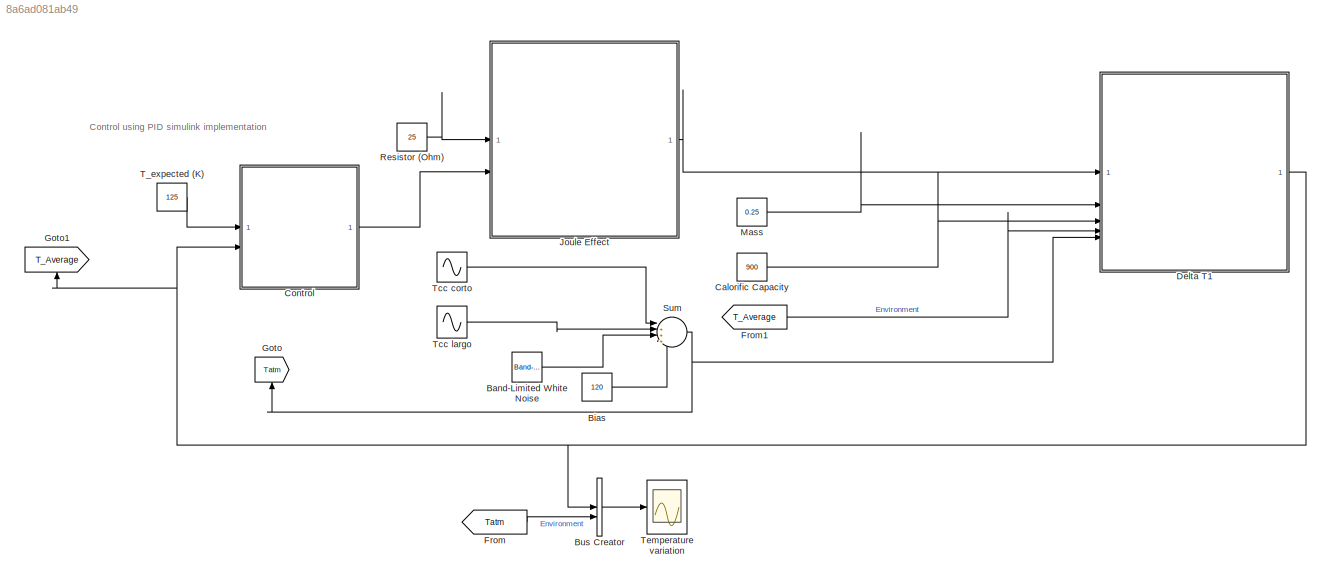
MODEL slx_8a6ad081ab49
KIND model
CONFIG AbsTol = auto
CONFIG EnableMultiTasking = off
CONFIG FixedStep = auto
CONFIG MaxStep = auto
CONFIG MinStep = auto
CONFIG RelTol = 1e-3
CONFIG SampleTimeConstraint = Unconstrained
CONFIG SolverName = VariableStepAuto
CONFIG StartTime = 0.0
CONFIG StopTime = 60*60*24
BLOCK [Reference] Band-Limited White Noise  REF=simulink/Sources/Band-Limited
White Noise
  SourceBlock = simulink/Sources/Band-Limited\nWhite Noise
  SourceType = Band-Limited White Noise.
BLOCK [Constant] Bias
  Value = 120
BLOCK [BusCreator] Bus Creator
  DisplayOption = bar
  InheritFromInputs = on
  Inputs = 2
BLOCK [Constant] Calorific Capacity
  Value = 900
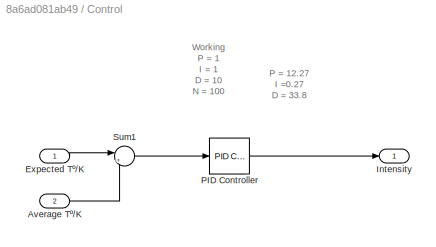
BLOCK [SubSystem] Control
BLOCK [Inport] Control/Average Tº//K
  Port = 2
BLOCK [Inport] Control/Expected Tº//K
BLOCK [Outport] Control/Intensity
BLOCK [Reference] Control/PID Controller  REF=slpidlib/PID Controller
  LibrarySourceBlock = simulink/Continuous/PID Controller
  SourceBlock = slpidlib/PID Controller
  SourceType = PID 1dof
BLOCK [Sum] Control/Sum1
  Inputs = |+-
  NameLocation = top
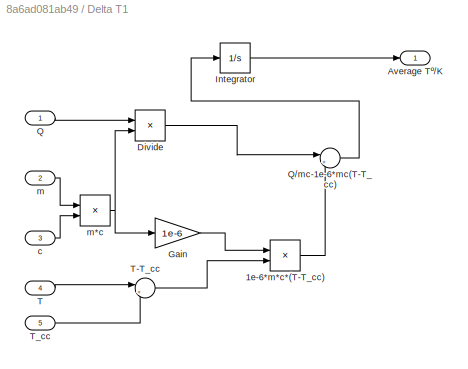
BLOCK [SubSystem] Delta T1
BLOCK [Product] Delta T1/1e-6*m*c*(T-T_cc)
BLOCK [Outport] Delta T1/Average Tº//K
BLOCK [Product] Delta T1/Divide
  Inputs = */
BLOCK [Gain] Delta T1/Gain
  Gain = 1e-6
BLOCK [Integrator] Delta T1/Integrator
BLOCK [Inport] Delta T1/Q
BLOCK [Sum] Delta T1/Q//mc-1e-6*mc(T-T_cc)
  Inputs = |+-
BLOCK [Inport] Delta T1/T
  Port = 4
BLOCK [Sum] Delta T1/T-T_cc
  Inputs = |+-
BLOCK [Inport] Delta T1/T_cc
  Port = 5
BLOCK [Inport] Delta T1/c
  Port = 3
BLOCK [Inport] Delta T1/m
  Port = 2
BLOCK [Product] Delta T1/m*c
BLOCK [From] From
  GotoTag = Tatm
BLOCK [From] From1
  GotoTag = T_Average
BLOCK [Goto] Goto
  GotoTag = Tatm
  NameLocation = right
BLOCK [Goto] Goto1
  GotoTag = T_Average
  NameLocation = right
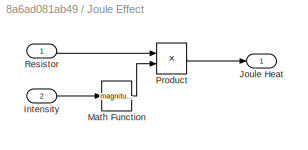
BLOCK [SubSystem] Joule Effect
BLOCK [Inport] Joule Effect/Intensity
  Port = 2
BLOCK [Outport] Joule Effect/Joule Heat
BLOCK [Math] Joule Effect/Math Function
  Operator = magnitude^2
BLOCK [Product] Joule Effect/Product
BLOCK [Inport] Joule Effect/Resistor
BLOCK [Constant] Mass
  Value = 0.25
BLOCK [Constant] Resistor (Ohm)
  Value = 25
BLOCK [Sum] Sum
  Inputs = |++++
BLOCK [Constant] T_expected (K)
  Value = 125
BLOCK [Sin] Tcc corto
  Amplitude = 0.02
  Frequency = 2*pi/(60*10)
  SampleTime = 0
BLOCK [Sin] Tcc largo
  Amplitude = 0.04
  Frequency = 2*pi/(4*60*60)
  SampleTime = 0
BLOCK [Scope] Temperature variation
  Floating = off
  NumInputPorts = 1
  ScopeSpecificationString = Simulink.scopes.TimeScopeBlockCfg('CurrentConfiguration', extmgr.ConfigurationSet(extmgr.Configuration('Core','General UI',true),extmgr.Configuration('Core','Source UI',true),extmgr.Configuration('Sources','WiredSimulink',true),extmgr.Configuration('Visuals','Time Domain',true,'SerializedDisplays',{struct('MinYLimReal','124.87091','MaxYLimReal','125.01994','YLabelReal','','MinYLimMag','124.87091',...<+1581ch>
ANNOTATION (root): Control using PID simulink implementation
ANNOTATION Control: P = 12.27 I =0.27 D = 33.8
ANNOTATION Control: Working P = 1 I = 1 D = 10 N = 100
LINE Band-Limited White Noise:1 -> Sum:3
LINE Bias:1 -> Sum:4
LINE Bus Creator:1 -> Temperature variation:1
LINE Calorific Capacity:1 -> Delta T1:3
LINE Control/Average Tº//K:1 -> Control/Sum1:2
LINE Control/Expected Tº//K:1 -> Control/Sum1:1
LINE Control/PID Controller:1 -> Control/Intensity:1
LINE Control/Sum1:1 -> Control/PID Controller:1
LINE Control:1 -> Joule Effect:2
LINE Delta T1/1e-6*m*c*(T-T_cc):1 -> Delta T1/Q//mc-1e-6*mc(T-T_cc):2
LINE Delta T1/Divide:1 -> Delta T1/Q//mc-1e-6*mc(T-T_cc):1
LINE Delta T1/Gain:1 -> Delta T1/1e-6*m*c*(T-T_cc):1
LINE Delta T1/Integrator:1 -> Delta T1/Average Tº//K:1
LINE Delta T1/Q//mc-1e-6*mc(T-T_cc):1 -> Delta T1/Integrator:1
LINE Delta T1/Q:1 -> Delta T1/Divide:1
LINE Delta T1/T-T_cc:1 -> Delta T1/1e-6*m*c*(T-T_cc):2
LINE Delta T1/T:1 -> Delta T1/T-T_cc:1
LINE Delta T1/T_cc:1 -> Delta T1/T-T_cc:2
LINE Delta T1/c:1 -> Delta T1/m*c:2
NET Delta T1/m*c:1 -> Delta T1/Divide:2, Delta T1/Gain:1
LINE Delta T1/m:1 -> Delta T1/m*c:1
NET Delta T1:1 -> Bus Creator:1, Control:2, Goto1:1
LINE From1:1 -> Delta T1:4
LINE From:1 -> Bus Creator:2
LINE Joule Effect/Intensity:1 -> Joule Effect/Math Function:1
LINE Joule Effect/Math Function:1 -> Joule Effect/Product:2
LINE Joule Effect/Product:1 -> Joule Effect/Joule Heat:1
LINE Joule Effect/Resistor:1 -> Joule Effect/Product:1
LINE Joule Effect:1 -> Delta T1:1
LINE Mass:1 -> Delta T1:2
LINE Resistor (Ohm):1 -> Joule Effect:1
NET Sum:1 -> Delta T1:5, Goto:1
LINE T_expected (K):1 -> Control:1
LINE Tcc corto:1 -> Sum:1
LINE Tcc largo:1 -> Sum:2
note: NET lines group one-source signal fan-out (src -> all destinations, sorted); 1:1 wires keep LINE
